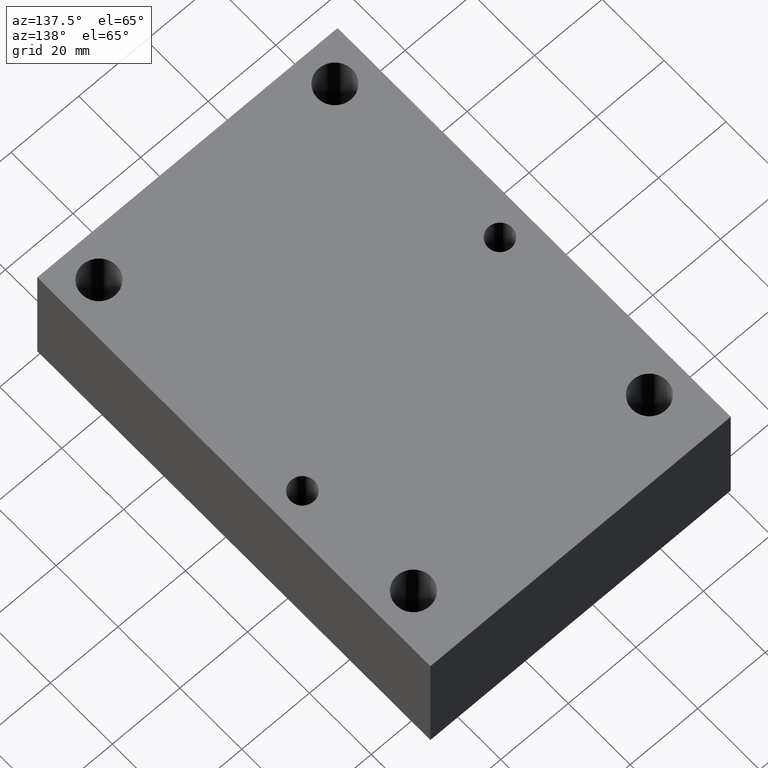
[diagram: clean part render]
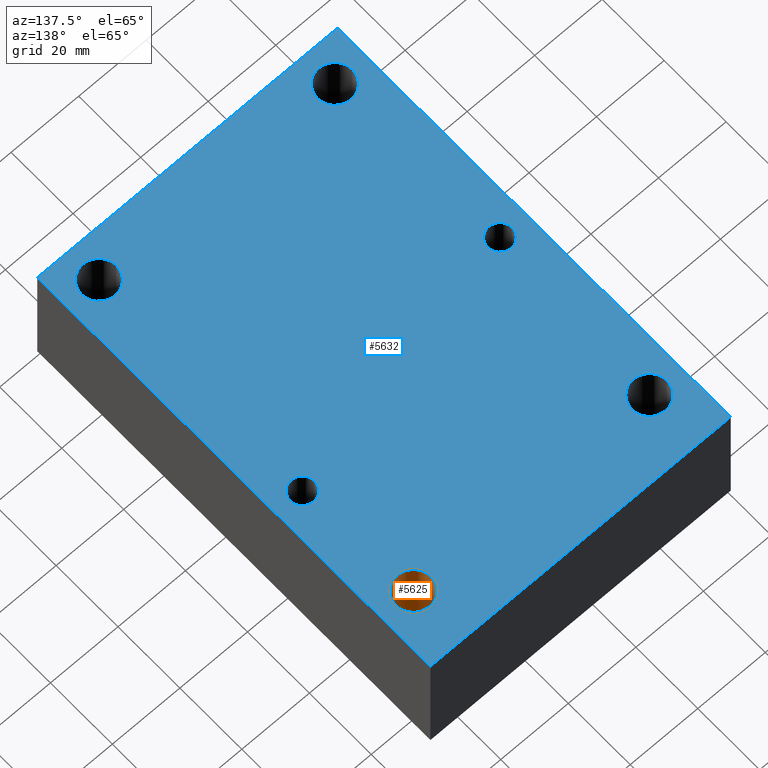
[diagram: same view with the hole feature highlighted: cylindrical wall and planar end face, labeled with their STEP entity ids]
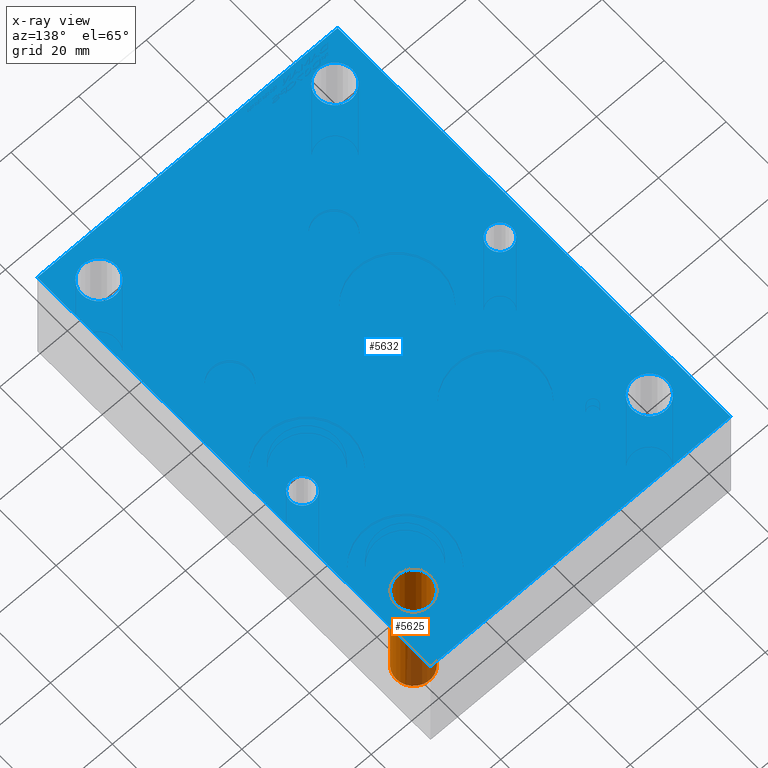
[diagram: x-ray of the same camera — body ghosted, the hole faces saturated]
A machine part, auxiliary view. The highlighted faces form one hole feature of diameter 10.3124 mm: the cylindrical wall (entity #5625, orange) and its adjacent planar end face (entity #5632, blue) — they share a circular edge in the B-rep.
The next image is the same camera in x-ray (body ghosted, the hole faces saturated) — the bore reads through the body.
Wall:
#29=CYLINDRICAL_SURFACE('',#5919,0.203);
#81=CIRCLE('',#5920,0.203);
#82=CIRCLE('',#5921,0.203);
#83=CIRCLE('',#5922,0.203);
#487=FACE_OUTER_BOUND('',#803,.T.);
#803=EDGE_LOOP('',(#5066,#5067,#5068,#5069,#5070));
#1431=LINE('',#9800,#2041);
#2041=VECTOR('',#7071,0.203);
#2721=VERTEX_POINT('',#9797);
#2722=VERTEX_POINT('',#9799);
#2723=VERTEX_POINT('',#9801);
#3517=EDGE_CURVE('',#2721,#2721,#81,.T.);
#3518=EDGE_CURVE('',#2721,#2722,#1431,.T.);
#3519=EDGE_CURVE('',#2723,#2722,#82,.T.);
#3520=EDGE_CURVE('',#2722,#2723,#83,.T.);
#5066=ORIENTED_EDGE('',*,*,#3517,.F.);
#5067=ORIENTED_EDGE('',*,*,#3518,.T.);
#5068=ORIENTED_EDGE('',*,*,#3519,.F.);
#5069=ORIENTED_EDGE('',*,*,#3520,.F.);
#5070=ORIENTED_EDGE('',*,*,#3518,.F.);
#5625=ADVANCED_FACE('',(#487),#29,.F.);
#5919=AXIS2_PLACEMENT_3D('',#9796,#7067,#7068);
#5920=AXIS2_PLACEMENT_3D('',#9798,#7069,#7070);
#5921=AXIS2_PLACEMENT_3D('',#9802,#7072,#7073);
#5922=AXIS2_PLACEMENT_3D('',#9803,#7074,#7075);
#7067=DIRECTION('center_axis',(0.,0.,-1.));
#7068=DIRECTION('ref_axis',(1.,0.,0.));
#7069=DIRECTION('center_axis',(0.,0.,-1.));
#7070=DIRECTION('ref_axis',(1.,0.,0.));
#7071=DIRECTION('',(0.,0.,-1.));
#7072=DIRECTION('center_axis',(0.,0.,1.));
#7073=DIRECTION('ref_axis',(1.,0.,0.));
#7074=DIRECTION('center_axis',(0.,0.,1.));
#7075=DIRECTION('ref_axis',(1.,0.,0.));
#9796=CARTESIAN_POINT('Origin',(3.125,4.375,0.8));
#9797=CARTESIAN_POINT('',(2.922,4.375,1.5));
#9798=CARTESIAN_POINT('Origin',(3.125,4.375,1.5));
#9799=CARTESIAN_POINT('',(2.922,4.375,0.));
#9800=CARTESIAN_POINT('',(2.922,4.375,0.8));
#9801=CARTESIAN_POINT('',(3.328,4.375,0.));
#9802=CARTESIAN_POINT('Origin',(3.125,4.375,0.));
#9803=CARTESIAN_POINT('Origin',(3.125,4.375,0.));
End face:
#69=CIRCLE('',#5904,0.1405);
#72=CIRCLE('',#5908,0.1405);
#75=CIRCLE('',#5912,0.203);
#78=CIRCLE('',#5916,0.203);
#81=CIRCLE('',#5920,0.203);
#84=CIRCLE('',#5924,0.203);
#129=FACE_BOUND('',#825,.T.);
#130=FACE_BOUND('',#826,.T.);
#131=FACE_BOUND('',#827,.T.);
#132=FACE_BOUND('',#828,.T.);
#133=FACE_BOUND('',#829,.T.);
#134=FACE_BOUND('',#830,.T.);
#494=FACE_OUTER_BOUND('',#824,.T.);
#824=EDGE_LOOP('',(#5127,#5128,#5129,#5130));
#825=EDGE_LOOP('',(#5131));
#826=EDGE_LOOP('',(#5132));
#827=EDGE_LOOP('',(#5133));
#828=EDGE_LOOP('',(#5134));
#829=EDGE_LOOP('',(#5135));
#830=EDGE_LOOP('',(#5136));
#1409=LINE('',#9639,#2019);
#1433=LINE('',#9814,#2043);
#1436=LINE('',#9820,#2046);
#1439=LINE('',#9825,#2049);
#2019=VECTOR('',#6887,3.5);
#2043=VECTOR('',#7087,5.);
#2046=VECTOR('',#7092,3.5);
#2049=VECTOR('',#7097,5.);
#2663=VERTEX_POINT('',#9637);
#2664=VERTEX_POINT('',#9638);
#2709=VERTEX_POINT('',#9765);
#2712=VERTEX_POINT('',#9773);
#2715=VERTEX_POINT('',#9781);
#2718=VERTEX_POINT('',#9789);
#2721=VERTEX_POINT('',#9797);
#2724=VERTEX_POINT('',#9805);
#2727=VERTEX_POINT('',#9813);
#2729=VERTEX_POINT('',#9819);
#3445=EDGE_CURVE('',#2663,#2664,#1409,.T.);
#3501=EDGE_CURVE('',#2709,#2709,#69,.T.);
#3505=EDGE_CURVE('',#2712,#2712,#72,.T.);
#3509=EDGE_CURVE('',#2715,#2715,#75,.T.);
#3513=EDGE_CURVE('',#2718,#2718,#78,.T.);
#3517=EDGE_CURVE('',#2721,#2721,#81,.T.);
#3521=EDGE_CURVE('',#2724,#2724,#84,.T.);
#3525=EDGE_CURVE('',#2664,#2727,#1433,.T.);
#3528=EDGE_CURVE('',#2727,#2729,#1436,.T.);
#3531=EDGE_CURVE('',#2729,#2663,#1439,.T.);
#5127=ORIENTED_EDGE('',*,*,#3525,.F.);
#5128=ORIENTED_EDGE('',*,*,#3445,.F.);
#5129=ORIENTED_EDGE('',*,*,#3531,.F.);
#5130=ORIENTED_EDGE('',*,*,#3528,.F.);
#5131=ORIENTED_EDGE('',*,*,#3501,.T.);
#5132=ORIENTED_EDGE('',*,*,#3505,.T.);
#5133=ORIENTED_EDGE('',*,*,#3509,.T.);
#5134=ORIENTED_EDGE('',*,*,#3513,.T.);
#5135=ORIENTED_EDGE('',*,*,#3517,.T.);
#5136=ORIENTED_EDGE('',*,*,#3521,.T.);
#5340=PLANE('',#5932);
#5632=ADVANCED_FACE('',(#494,#129,#130,#131,#132,#133,#134),#5340,.T.);
#5904=AXIS2_PLACEMENT_3D('',#9766,#7033,#7034);
#5908=AXIS2_PLACEMENT_3D('',#9774,#7042,#7043);
#5912=AXIS2_PLACEMENT_3D('',#9782,#7051,#7052);
#5916=AXIS2_PLACEMENT_3D('',#9790,#7060,#7061);
#5920=AXIS2_PLACEMENT_3D('',#9798,#7069,#7070);
#5924=AXIS2_PLACEMENT_3D('',#9806,#7078,#7079);
#5932=AXIS2_PLACEMENT_3D('',#9829,#7103,#7104);
#6887=DIRECTION('',(-1.,0.,0.));
#7033=DIRECTION('center_axis',(0.,0.,-1.));
#7034=DIRECTION('ref_axis',(1.,0.,0.));
#7042=DIRECTION('center_axis',(0.,0.,-1.));
#7043=DIRECTION('ref_axis',(1.,0.,0.));
#7051=DIRECTION('center_axis',(0.,0.,-1.));
#7052=DIRECTION('ref_axis',(1.,0.,0.));
#7060=DIRECTION('center_axis',(0.,0.,-1.));
#7061=DIRECTION('ref_axis',(1.,0.,0.));
#7069=DIRECTION('center_axis',(0.,0.,-1.));
#7070=DIRECTION('ref_axis',(1.,0.,0.));
#7078=DIRECTION('center_axis',(0.,0.,-1.));
#7079=DIRECTION('ref_axis',(1.,0.,0.));
#7087=DIRECTION('',(0.,1.,0.));
#7092=DIRECTION('',(1.,0.,0.));
#7097=DIRECTION('',(0.,-1.,0.));
#7103=DIRECTION('center_axis',(0.,0.,1.));
#7104=DIRECTION('ref_axis',(1.,0.,0.));
#9637=CARTESIAN_POINT('',(3.5,0.,1.5));
#9638=CARTESIAN_POINT('',(0.,0.,1.5));
#9639=CARTESIAN_POINT('',(3.5,0.,1.5));
#9765=CARTESIAN_POINT('',(3.0475,3.031,1.5));
#9766=CARTESIAN_POINT('Origin',(3.188,3.031,1.5));
#9773=CARTESIAN_POINT('',(0.1725,2.406,1.5));
#9774=CARTESIAN_POINT('Origin',(0.313,2.406,1.5));
#9781=CARTESIAN_POINT('',(0.172,0.375,1.5));
#9782=CARTESIAN_POINT('Origin',(0.375,0.375,1.5));
#9789=CARTESIAN_POINT('',(2.922,0.375,1.5));
#9790=CARTESIAN_POINT('Origin',(3.125,0.375,1.5));
#9797=CARTESIAN_POINT('',(2.922,4.375,1.5));
#9798=CARTESIAN_POINT('Origin',(3.125,4.375,1.5));
#9805=CARTESIAN_POINT('',(0.172,4.375,1.5));
#9806=CARTESIAN_POINT('Origin',(0.375,4.375,1.5));
#9813=CARTESIAN_POINT('',(0.,5.,1.5));
#9814=CARTESIAN_POINT('',(0.,0.,1.5));
#9819=CARTESIAN_POINT('',(3.5,5.,1.5));
#9820=CARTESIAN_POINT('',(0.,5.,1.5));
#9825=CARTESIAN_POINT('',(3.5,5.,1.5));
#9829=CARTESIAN_POINT('Origin',(1.75,2.5,1.5));